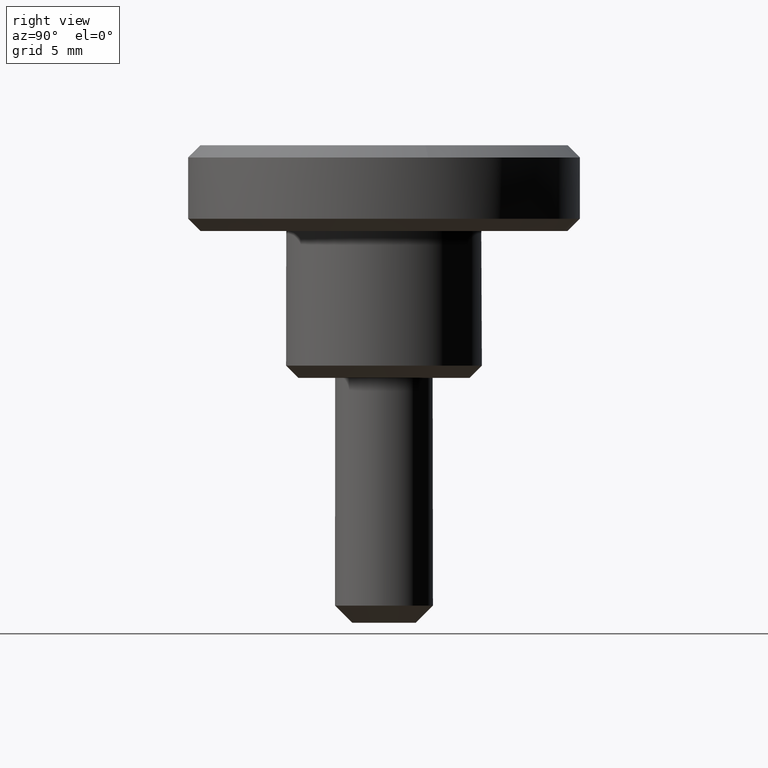
[diagram: clean part render]
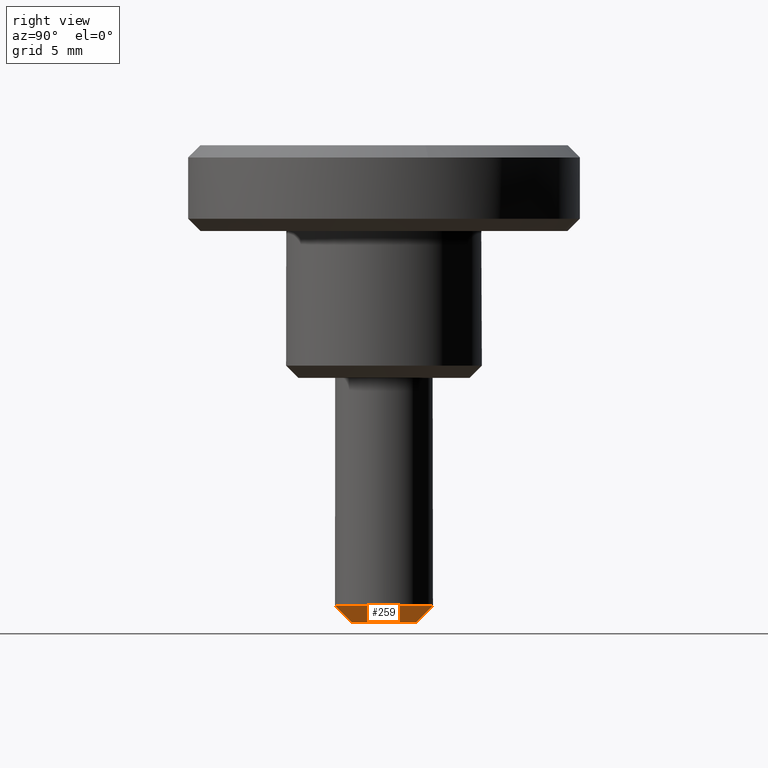
[diagram: same view with one face highlighted and labeled with its STEP entity id]
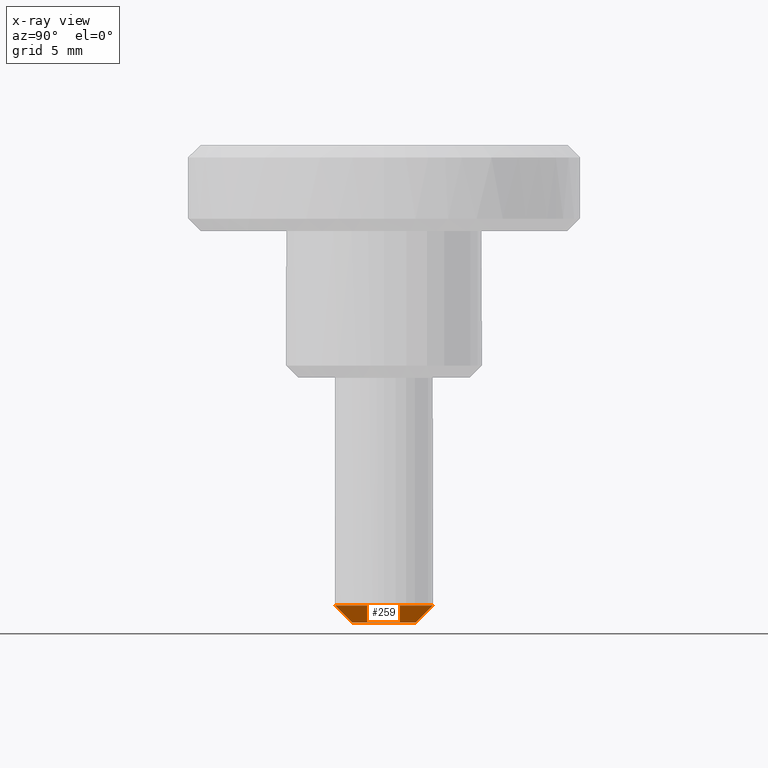
[diagram: x-ray of the same camera — body ghosted, the highlighted face saturated]
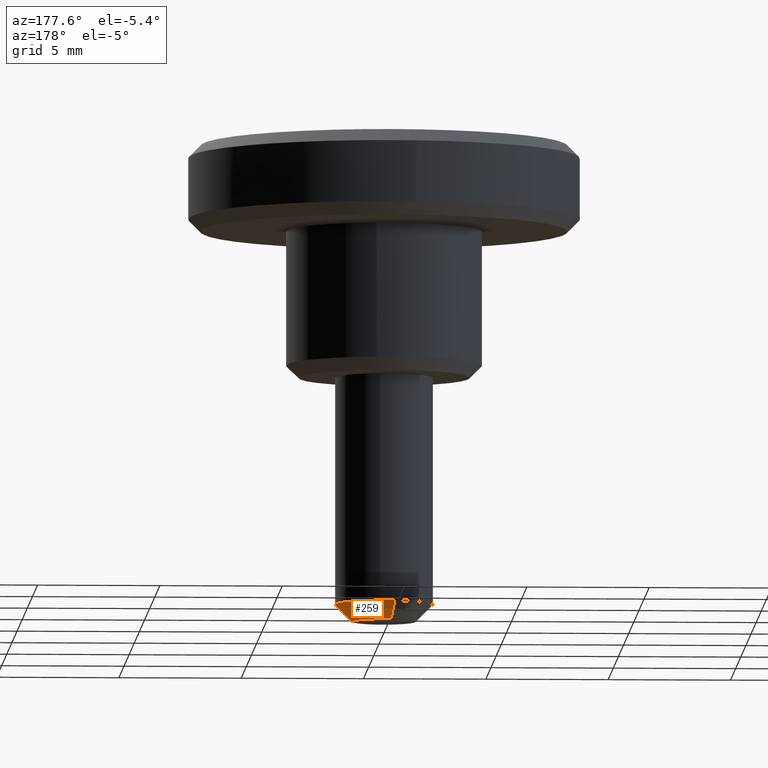
[diagram: same view with one face highlighted and labeled with its STEP entity id]
A machine part, right view. The second image highlights one B-rep face of the part: STEP entity #259.
The next image is the same camera in x-ray: the body ghosted, the highlighted face saturated — about 0% of this face is hidden behind the body in this view.
A second angle (auxiliary view) of the same face is appended — the face is thin or edge-on in the first view.
In plain terms, the highlighted face is a freeform B-spline surface patch.
Its self-contained STEP definition (entity closure, byte-faithful):
#62=CARTESIAN_POINT('',(-0.366247257942256,1.966179784774796,-9.299999999997844));
#63=VERTEX_POINT('',#62);
#79=CARTESIAN_POINT('',(-0.238060717697703,1.278016860101234,-9.999999999994298));
#80=VERTEX_POINT('',#79);
#81=CARTESIAN_POINT('',(-0.238060717697703,1.278016860101234,-9.999999999994298));
#82=CARTESIAN_POINT('',(-0.366247257942256,1.966179784774796,-9.299999999997844));
#83=QUASI_UNIFORM_CURVE('',1,(#81,#82),.UNSPECIFIED.,.F.,.U.);
#84=EDGE_CURVE('',#80,#63,#83,.T.);
#101=CARTESIAN_POINT('',(0.011344496234044,-1.299950499994289,-9.999999999987974));
#102=VERTEX_POINT('',#101);
#118=CARTESIAN_POINT('',(0.017453071073165,-1.999923846138014,-9.299999999989328));
#119=VERTEX_POINT('',#118);
#120=CARTESIAN_POINT('',(0.011344496234044,-1.299950499994289,-9.999999999987974));
#121=CARTESIAN_POINT('',(0.017453071073165,-1.999923846138014,-9.299999999989328));
#122=QUASI_UNIFORM_CURVE('',1,(#120,#121),.UNSPECIFIED.,.F.,.U.);
#123=EDGE_CURVE('',#102,#119,#122,.T.);
#158=CARTESIAN_POINT('',(0.011191781776663,-1.282451166329666,-10.017499999999719));
#159=CARTESIAN_POINT('',(1.293642948106330,-1.271259384553003,-10.017499999999721));
#160=CARTESIAN_POINT('',(1.282451166329666,0.011191781776663,-10.017499999999719));
#161=CARTESIAN_POINT('',(1.271259384553003,1.293642948106330,-10.017499999999721));
#162=CARTESIAN_POINT('',(-0.011191781776663,1.282451166329666,-10.017499999999719));
#163=CARTESIAN_POINT('',(-0.123975398511113,1.281466918617461,-10.017499999999719));
#164=CARTESIAN_POINT('',(-0.234856054145316,1.260812786987407,-10.017499999999721));
#165=CARTESIAN_POINT('',(0.017609603227249,-2.017860663123225,-9.282062499999750));
#166=CARTESIAN_POINT('',(2.035470266350473,-2.000251059895975,-9.282062499999750));
#167=CARTESIAN_POINT('',(2.017860663123225,0.017609603227249,-9.282062499999750));
#168=CARTESIAN_POINT('',(2.000251059895975,2.035470266350473,-9.282062499999750));
#169=CARTESIAN_POINT('',(-0.017609603227249,2.017860663123225,-9.282062499999750));
#170=CARTESIAN_POINT('',(-0.195067918700222,2.016312007865721,-9.282062499999750));
#171=CARTESIAN_POINT('',(-0.369532038020969,1.983813959720516,-9.282062499999752));
#179=(BOUNDED_SURFACE()B_SPLINE_SURFACE(2,1,((#158,#165),(#159,#166),(#160,#167),(#161,#168),(#162,#169),(#163,#170),(#164,#171)),.UNSPECIFIED.,.F.,.F.,.U.)B_SPLINE_SURFACE_WITH_KNOTS((3,2,2,3),(2,2),(0.0,3.343428322084896,6.686856644169791,7.088068042819979),(0.0,1.0),.UNSPECIFIED.)GEOMETRIC_REPRESENTATION_ITEM()RATIONAL_B_SPLINE_SURFACE(((1.0,1.0),(0.707106781186548,0.707106781186548),(1.0,1.0),(0.707106781186548,0.707106781186548),(1.0,1.0),(0.964852813742386,0.964852813742386),(0.938140952186599,0.938140952186599)))REPRESENTATION_ITEM('')SURFACE());
#180=CARTESIAN_POINT('',(0.236068469329334,1.986019052725367,-9.299999999999750));
#181=VERTEX_POINT('',#180);
#182=CARTESIAN_POINT('',(0.236068469329334,1.986019052725367,-9.299999999999750));
#183=CARTESIAN_POINT('',(0.118448239319810,1.999999999999915,-9.299999999999750));
#184=CARTESIAN_POINT('',(0.0,1.999999999999915,-9.299999999999750));
#185=CARTESIAN_POINT('',(-0.184685151875231,1.999999999999915,-9.299999999999749));
#186=CARTESIAN_POINT('',(-0.366247257942256,1.966179784774797,-9.299999999997844));
#194=(BOUNDED_CURVE()B_SPLINE_CURVE(2,(#182,#183,#184,#185,#186),.UNSPECIFIED.,.F.,.U.)B_SPLINE_CURVE_WITH_KNOTS((3,2,3),(0.229562473512951,0.250000000000000,0.281445263715814),.UNSPECIFIED.)CURVE()GEOMETRIC_REPRESENTATION_ITEM()RATIONAL_B_SPLINE_CURVE((0.956026754182606,0.976055948330492,1.0,0.963159581975350,0.935586817232187))REPRESENTATION_ITEM(''));
#195=EDGE_CURVE('',#181,#63,#194,.T.);
#196=ORIENTED_EDGE('',*,*,#195,.F.);
#197=CARTESIAN_POINT('',(1.999999999999915,0.0,-9.299999999999750));
#198=VERTEX_POINT('',#197);
#199=CARTESIAN_POINT('',(1.999999999999915,0.0,-9.299999999999750));
#200=CARTESIAN_POINT('',(1.999999999999915,1.776349051874147,-9.299999999999752));
#201=CARTESIAN_POINT('',(0.236068469329334,1.986019052725367,-9.299999999999750));
#209=(BOUNDED_CURVE()B_SPLINE_CURVE(2,(#199,#200,#201),.UNSPECIFIED.,.F.,.U.)B_SPLINE_CURVE_WITH_KNOTS((3,3),(0.0,0.229562473512951),.UNSPECIFIED.)CURVE()GEOMETRIC_REPRESENTATION_ITEM()RATIONAL_B_SPLINE_CURVE((1.0,0.731050832856056,0.956026754182606))REPRESENTATION_ITEM(''));
#210=EDGE_CURVE('',#198,#181,#209,.T.);
#211=ORIENTED_EDGE('',*,*,#210,.F.);
#212=CARTESIAN_POINT('',(0.017453071073165,-1.999923846138015,-9.299999999989328));
#213=CARTESIAN_POINT('',(1.999999999999915,-1.982622421038533,-9.299999999999749));
#214=CARTESIAN_POINT('',(1.999999999999915,0.0,-9.299999999999750));
#222=(BOUNDED_CURVE()B_SPLINE_CURVE(2,(#212,#213,#214),.UNSPECIFIED.,.F.,.U.)B_SPLINE_CURVE_WITH_KNOTS((3,3),(0.751539894348432,1.0),.UNSPECIFIED.)CURVE()GEOMETRIC_REPRESENTATION_ITEM()RATIONAL_B_SPLINE_CURVE((0.996414028069290,0.708910879635927,1.0))REPRESENTATION_ITEM(''));
#223=EDGE_CURVE('',#119,#198,#222,.T.);
#224=ORIENTED_EDGE('',*,*,#223,.F.);
#225=ORIENTED_EDGE('',*,*,#123,.F.);
#226=CARTESIAN_POINT('',(1.299999999999874,0.0,-9.999999999999719));
#227=VERTEX_POINT('',#226);
#228=CARTESIAN_POINT('',(1.299999999999874,0.0,-9.999999999999719));
#229=CARTESIAN_POINT('',(1.299999999999874,-1.288704573602715,-9.999999999999721));
#230=CARTESIAN_POINT('',(0.011344496234044,-1.299950499994289,-9.999999999987974));
#238=(BOUNDED_CURVE()B_SPLINE_CURVE(2,(#228,#229,#230),.UNSPECIFIED.,.F.,.U.)B_SPLINE_CURVE_WITH_KNOTS((3,3),(0.0,0.248460105641691),.UNSPECIFIED.)CURVE()GEOMETRIC_REPRESENTATION_ITEM()RATIONAL_B_SPLINE_CURVE((1.0,0.708910879647498,0.996414028046434))REPRESENTATION_ITEM(''));
#239=EDGE_CURVE('',#227,#102,#238,.T.);
#240=ORIENTED_EDGE('',*,*,#239,.F.);
#241=CARTESIAN_POINT('',(-0.238060717697703,1.278016860101234,-9.999999999994298));
#242=CARTESIAN_POINT('',(-0.120045348754271,1.299999999999874,-9.999999999999719));
#243=CARTESIAN_POINT('',(0.0,1.299999999999874,-9.999999999999719));
#244=CARTESIAN_POINT('',(1.299999999999874,1.299999999999874,-9.999999999999719));
#245=CARTESIAN_POINT('',(1.299999999999874,0.0,-9.999999999999719));
#253=(BOUNDED_CURVE()B_SPLINE_CURVE(2,(#241,#242,#243,#244,#245),.UNSPECIFIED.,.F.,.U.)B_SPLINE_CURVE_WITH_KNOTS((3,2,3),(0.718554736275261,0.750000000000000,1.0),.UNSPECIFIED.)CURVE()GEOMETRIC_REPRESENTATION_ITEM()RATIONAL_B_SPLINE_CURVE((0.935586817216535,0.963159581964893,1.0,0.707106781186548,1.0))REPRESENTATION_ITEM(''));
#254=EDGE_CURVE('',#80,#227,#253,.T.);
#255=ORIENTED_EDGE('',*,*,#254,.F.);
#256=ORIENTED_EDGE('',*,*,#84,.T.);
#257=EDGE_LOOP('',(#196,#211,#224,#225,#240,#255,#256));
#258=FACE_OUTER_BOUND('',#257,.T.);
#259=ADVANCED_FACE('',(#258),#179,.T.);